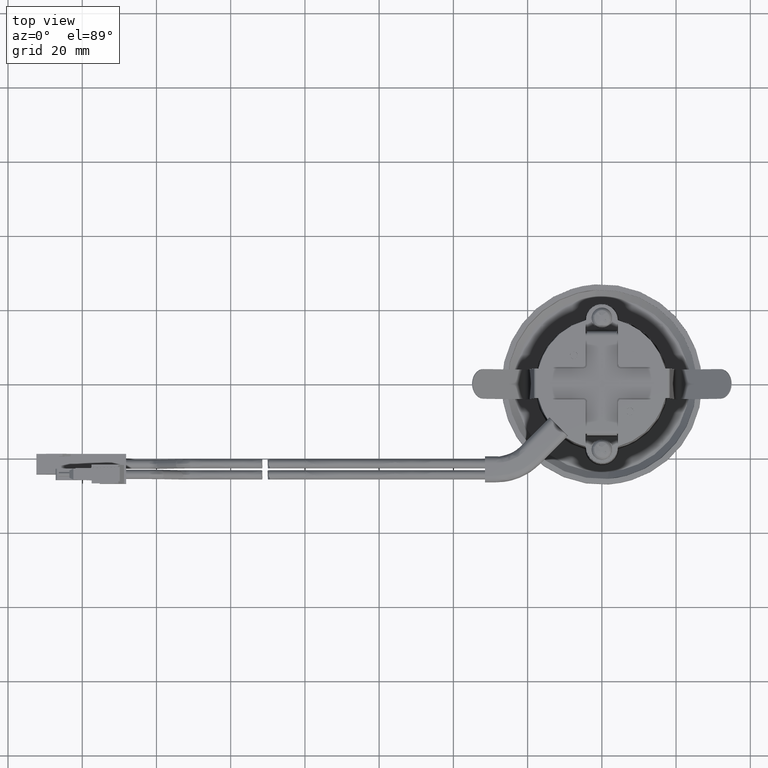
[diagram: clean part render]
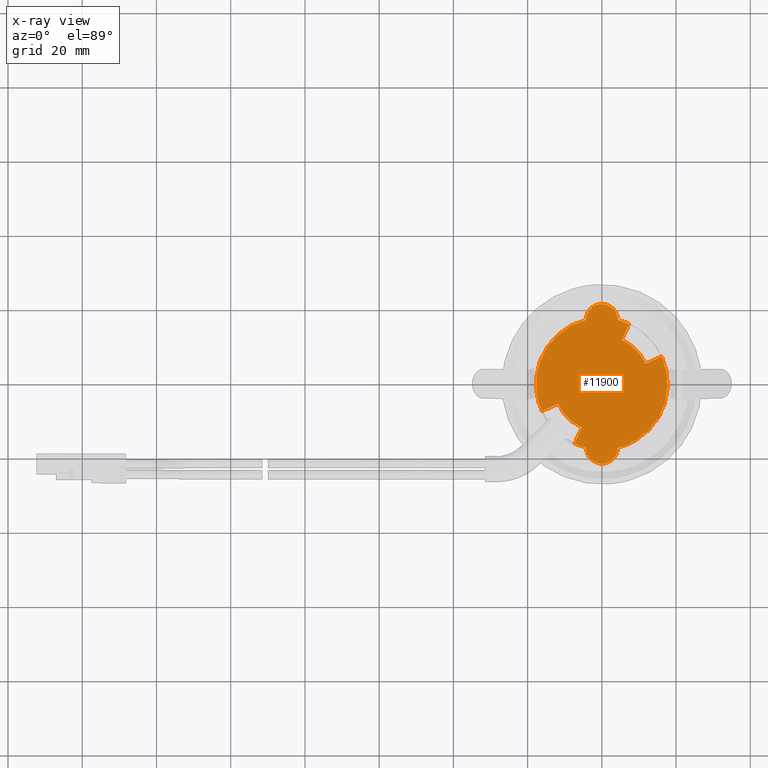
[diagram: x-ray — body ghosted, one internal face saturated and labeled with its STEP entity id]
A machine part, top view, then the same camera in x-ray: the body is ghosted and one INTERNAL B-rep face — a face not visible from any outside direction — is saturated and labeled: STEP entity #11900.
In plain terms, the highlighted face is a freeform B-spline surface patch.
Its self-contained STEP definition (entity closure, byte-faithful):
#11588=CARTESIAN_POINT('',(11.820069417615660,5.411650299395420,12.599999999995401));
#11589=VERTEX_POINT('',#11588);
#11590=CARTESIAN_POINT('',(16.139120196073101,7.389066134489690,12.599999999995360));
#11591=VERTEX_POINT('',#11590);
#11592=CARTESIAN_POINT('',(11.820069417615660,5.411650299395420,12.599999999995401));
#11593=CARTESIAN_POINT('',(16.139120196073101,7.389066134489690,12.599999999995360));
#11594=QUASI_UNIFORM_CURVE('',1,(#11592,#11593),.UNSPECIFIED.,.F.,.U.);
#11595=EDGE_CURVE('',#11589,#11591,#11594,.T.);
#11633=CARTESIAN_POINT('',(-7.389066134481221,-16.139120196064649,12.599999999995360));
#11634=VERTEX_POINT('',#11633);
#11640=CARTESIAN_POINT('',(-5.411650299386991,-11.820069417607240,12.599999999995401));
#11641=VERTEX_POINT('',#11640);
#11642=CARTESIAN_POINT('',(-7.389066134481221,-16.139120196064649,12.599999999995360));
#11643=CARTESIAN_POINT('',(-5.411650299386991,-11.820069417607240,12.599999999995401));
#11644=QUASI_UNIFORM_CURVE('',1,(#11642,#11643),.UNSPECIFIED.,.F.,.U.);
#11645=EDGE_CURVE('',#11634,#11641,#11644,.T.);
#11669=CARTESIAN_POINT('',(7.389066134487950,16.139120196069300,12.599999999995360));
#11670=VERTEX_POINT('',#11669);
#11676=CARTESIAN_POINT('',(5.411650299393680,11.820069417611840,12.599999999995360));
#11677=VERTEX_POINT('',#11676);
#11678=CARTESIAN_POINT('',(5.411650299393680,11.820069417611840,12.599999999995360));
#11679=CARTESIAN_POINT('',(7.389066134487950,16.139120196069300,12.599999999995360));
#11680=QUASI_UNIFORM_CURVE('',1,(#11678,#11679),.UNSPECIFIED.,.F.,.U.);
#11681=EDGE_CURVE('',#11677,#11670,#11680,.T.);
#11696=CARTESIAN_POINT('',(-16.139120196060851,-7.389066134479481,12.599999999995360));
#11697=VERTEX_POINT('',#11696);
#11698=CARTESIAN_POINT('',(-11.820069417603420,-5.411650299385229,12.599999999995401));
#11699=VERTEX_POINT('',#11698);
#11700=CARTESIAN_POINT('',(-16.139120196060851,-7.389066134479481,12.599999999995360));
#11701=CARTESIAN_POINT('',(-11.820069417603420,-5.411650299385229,12.599999999995401));
#11702=QUASI_UNIFORM_CURVE('',1,(#11700,#11701),.UNSPECIFIED.,.F.,.U.);
#11703=EDGE_CURVE('',#11697,#11699,#11702,.T.);
#11741=CARTESIAN_POINT('',(11.820069417615670,5.411650299395422,12.599999999995401));
#11742=CARTESIAN_POINT('',(9.807494711821848,9.807494711821841,12.599999999995401));
#11743=CARTESIAN_POINT('',(5.411650299393686,11.820069417611849,12.599999999995401));
#11751=(BOUNDED_CURVE()B_SPLINE_CURVE(2,(#11741,#11742,#11743),.UNSPECIFIED.,.F.,.U.)CURVE()GEOMETRIC_REPRESENTATION_ITEM()QUASI_UNIFORM_CURVE()RATIONAL_B_SPLINE_CURVE((1.0,0.937281989492043,1.0))REPRESENTATION_ITEM(''));
#11752=EDGE_CURVE('',#11589,#11677,#11751,.T.);
#11772=CARTESIAN_POINT('',(-19.519636161758459,-23.648066767490899,12.599999999995360));
#11773=CARTESIAN_POINT('',(19.519635506337838,-23.648066767490899,12.599999999995360));
#11774=CARTESIAN_POINT('',(-19.519636161758459,23.648067920848789,12.599999999995360));
#11775=CARTESIAN_POINT('',(19.519635506337838,23.648067920848789,12.599999999995360));
#11776=B_SPLINE_SURFACE_WITH_KNOTS('',1,1,((#11772,#11774),(#11773,#11775)),.UNSPECIFIED.,.F.,.F.,.U.,(2,2),(2,2),(0.0,39.039271668096298),(0.0,47.296134688339677),.UNSPECIFIED.);
#11777=CARTESIAN_POINT('',(-11.820069417603429,-5.411650299385236,12.599999999995401));
#11778=CARTESIAN_POINT('',(-9.807494711813426,-9.807494711813419,12.599999999995399));
#11779=CARTESIAN_POINT('',(-5.411650299386992,-11.820069417607240,12.599999999995401));
#11787=(BOUNDED_CURVE()B_SPLINE_CURVE(2,(#11777,#11778,#11779),.UNSPECIFIED.,.F.,.U.)CURVE()GEOMETRIC_REPRESENTATION_ITEM()QUASI_UNIFORM_CURVE()RATIONAL_B_SPLINE_CURVE((1.0,0.937281989492042,1.0))REPRESENTATION_ITEM(''));
#11788=EDGE_CURVE('',#11699,#11641,#11787,.T.);
#11789=ORIENTED_EDGE('',*,*,#11788,.T.);
#11790=ORIENTED_EDGE('',*,*,#11645,.F.);
#11791=CARTESIAN_POINT('',(-4.300143667961680,-17.221447775309699,12.599999999995360));
#11792=VERTEX_POINT('',#11791);
#11793=CARTESIAN_POINT('',(-4.300143667961680,-17.221447775309699,12.599999999995360));
#11794=CARTESIAN_POINT('',(-5.894712351108485,-16.823288775239021,12.599999999995365));
#11795=CARTESIAN_POINT('',(-7.389066134481216,-16.139120196064649,12.599999999995360));
#11803=(BOUNDED_CURVE()B_SPLINE_CURVE(2,(#11793,#11794,#11795),.UNSPECIFIED.,.F.,.U.)CURVE()GEOMETRIC_REPRESENTATION_ITEM()QUASI_UNIFORM_CURVE()RATIONAL_B_SPLINE_CURVE((1.0,0.995740726153244,1.0))REPRESENTATION_ITEM(''));
#11804=EDGE_CURVE('',#11792,#11634,#11803,.T.);
#11805=ORIENTED_EDGE('',*,*,#11804,.F.);
#11806=CARTESIAN_POINT('',(4.300143667977815,-17.221447775309251,12.599999999995360));
#11807=VERTEX_POINT('',#11806);
#11808=CARTESIAN_POINT('',(-4.300143667961680,-17.221447775309699,12.599999999995360));
#11809=CARTESIAN_POINT('',(-4.298087749534650,-17.677360198858999,12.599999999995370));
#11810=CARTESIAN_POINT('',(-4.175966307602825,-18.413031718203040,12.599999999995349));
#11811=CARTESIAN_POINT('',(-3.700844362179833,-19.474430707415902,12.599999999995360));
#11812=CARTESIAN_POINT('',(-3.022331069772409,-20.338885315631199,12.599999999995390));
#11813=CARTESIAN_POINT('',(-2.160554380428058,-20.958955671167509,12.599999999995291));
#11814=CARTESIAN_POINT('',(-1.221814471647675,-21.359965363324271,12.599999999995420));
#11815=CARTESIAN_POINT('',(-0.247660201793354,-21.540745539002138,12.599999999995349));
#11816=CARTESIAN_POINT('',(0.915155849834454,-21.455258537053108,12.599999999995360));
#11817=CARTESIAN_POINT('',(1.916804738383563,-21.098176644945092,12.599999999995370));
#11818=CARTESIAN_POINT('',(2.767519460198279,-20.531850013070340,12.599999999995360));
#11819=CARTESIAN_POINT('',(3.385137187035041,-19.902100274875458,12.599999999995370));
#11820=CARTESIAN_POINT('',(3.915756130289163,-19.070193180261249,12.599999999995321));
#11821=CARTESIAN_POINT('',(4.230091697475232,-18.167954958485609,12.599999999995481));
#11822=CARTESIAN_POINT('',(4.298760073416812,-17.501953437655271,12.599999999995131));
#11823=CARTESIAN_POINT('',(4.300143667977815,-17.221447775309251,12.599999999995360));
#11824=B_SPLINE_CURVE_WITH_KNOTS('',3,(#11808,#11809,#11810,#11811,#11812,#11813,#11814,#11815,#11816,#11817,#11818,#11819,#11820,#11821,#11822,#11823),.UNSPECIFIED.,.F.,.U.,(4,1,1,1,1,1,1,1,1,1,1,1,1,4),(0.000000403355857,1.367708423957748,2.209354594097670,3.471949492240025,4.629324863737949,5.365817667365527,6.523097669418815,7.575048846999569,8.837598022564650,9.679339093689130,10.626264686124600,11.467929539509139,12.625348503171629,13.466907852277201),.UNSPECIFIED.);
#11825=EDGE_CURVE('',#11792,#11807,#11824,.T.);
#11826=ORIENTED_EDGE('',*,*,#11825,.T.);
#11827=CARTESIAN_POINT('',(16.139120196073101,7.389066134489690,12.599999999995360));
#11828=CARTESIAN_POINT('',(16.713689377058770,6.134915193318673,12.599999999995370));
#11829=CARTESIAN_POINT('',(17.341612796917421,4.191462022497999,12.599999999995321));
#11830=CARTESIAN_POINT('',(17.753730208420681,1.294991990540205,12.599999999995420));
#11831=CARTESIAN_POINT('',(17.781679332892320,-1.227515517554583,12.599999999995349));
#11832=CARTESIAN_POINT('',(17.365272921095080,-4.046668347766498,12.599999999995310));
#11833=CARTESIAN_POINT('',(16.517484992407020,-6.681904223830490,12.599999999995410));
#11834=CARTESIAN_POINT('',(15.320870799134660,-9.084475189198603,12.599999999995390));
#11835=CARTESIAN_POINT('',(13.698427694370910,-11.425332921273560,12.599999999995280));
#11836=CARTESIAN_POINT('',(11.239561925018430,-13.923743911355221,12.599999999995440));
#11837=CARTESIAN_POINT('',(8.012145501215617,-16.009810370431360,12.599999999995500));
#11838=CARTESIAN_POINT('',(5.481070607404404,-16.926704402108800,12.599999999994930));
#11839=CARTESIAN_POINT('',(4.300143667977815,-17.221447775309251,12.599999999995360));
#11840=B_SPLINE_CURVE_WITH_KNOTS('',3,(#11827,#11828,#11829,#11830,#11831,#11832,#11833,#11834,#11835,#11836,#11837,#11838,#11839),.UNSPECIFIED.,.F.,.U.,(4,1,1,1,1,1,1,1,1,1,4),(0.000000031636684,4.138418371552721,6.085895752922312,8.763735331696910,11.685000799164850,14.606245944229430,17.040509287937581,19.718354154692211,23.126486756483029,27.508396175861179,31.159896400517141),.UNSPECIFIED.);
#11841=EDGE_CURVE('',#11591,#11807,#11840,.T.);
#11842=ORIENTED_EDGE('',*,*,#11841,.F.);
#11843=ORIENTED_EDGE('',*,*,#11595,.F.);
#11844=ORIENTED_EDGE('',*,*,#11752,.T.);
#11845=ORIENTED_EDGE('',*,*,#11681,.T.);
#11846=CARTESIAN_POINT('',(4.300143667978775,17.221447775309649,12.599999999995360));
#11847=VERTEX_POINT('',#11846);
#11848=CARTESIAN_POINT('',(7.389066134487957,16.139120196069321,12.599999999995360));
#11849=CARTESIAN_POINT('',(5.894712351120023,16.823288775240357,12.599999999995363));
#11850=CARTESIAN_POINT('',(4.300143667978649,17.221447775309141,12.599999999995360));
#11858=(BOUNDED_CURVE()B_SPLINE_CURVE(2,(#11848,#11849,#11850),.UNSPECIFIED.,.F.,.U.)CURVE()GEOMETRIC_REPRESENTATION_ITEM()QUASI_UNIFORM_CURVE()RATIONAL_B_SPLINE_CURVE((1.0,0.995740726153274,1.0))REPRESENTATION_ITEM(''));
#11859=EDGE_CURVE('',#11670,#11847,#11858,.T.);
#11860=ORIENTED_EDGE('',*,*,#11859,.T.);
#11861=CARTESIAN_POINT('',(-4.300143667961300,17.221447775309748,12.599999999995360));
#11862=VERTEX_POINT('',#11861);
#11863=CARTESIAN_POINT('',(4.300143667978775,17.221447775309649,12.599999999995360));
#11864=CARTESIAN_POINT('',(4.298132782290181,17.677372181915249,12.599999999995360));
#11865=CARTESIAN_POINT('',(4.175919286116658,18.413015499201791,12.599999999995349));
#11866=CARTESIAN_POINT('',(3.700858034583326,19.474454985447800,12.599999999995379));
#11867=CARTESIAN_POINT('',(3.109888211502567,20.227272363935491,12.599999999995330));
#11868=CARTESIAN_POINT('',(2.366472125209362,20.819436330515838,12.599999999995410));
#11869=CARTESIAN_POINT('',(1.588912293884546,21.233554465149449,12.599999999995291));
#11870=CARTESIAN_POINT('',(0.498993538872298,21.534389563832828,12.599999999995520));
#11871=CARTESIAN_POINT('',(-0.639302122250758,21.506620714532911,12.599999999995051));
#11872=CARTESIAN_POINT('',(-1.651116364162653,21.200327084785780,12.599999999995790));
#11873=CARTESIAN_POINT('',(-2.553233896772518,20.720183544069538,12.599999999994690));
#11874=CARTESIAN_POINT('',(-3.440043235169898,19.900637621935591,12.599999999995930));
#11875=CARTESIAN_POINT('',(-4.129033755438655,18.658180360114699,12.599999999995120));
#11876=CARTESIAN_POINT('',(-4.298040629255651,17.712436343994149,12.599999999995349));
#11877=CARTESIAN_POINT('',(-4.300143667961300,17.221447775309748,12.599999999995360));
#11878=B_SPLINE_CURVE_WITH_KNOTS('',3,(#11863,#11864,#11865,#11866,#11867,#11868,#11869,#11870,#11871,#11872,#11873,#11874,#11875,#11876,#11877),.UNSPECIFIED.,.F.,.U.,(4,1,1,1,1,1,1,1,1,1,1,1,4),(0.000000403354406,1.367708423955600,2.209354594095236,3.471949492237135,4.208433018623010,5.050167311527421,6.102329566907031,7.575048846995474,8.416807544329373,9.258459209713511,10.626264686119420,11.994052461655841,13.466907852271641),.UNSPECIFIED.);
#11879=EDGE_CURVE('',#11847,#11862,#11878,.T.);
#11880=ORIENTED_EDGE('',*,*,#11879,.T.);
#11881=CARTESIAN_POINT('',(-4.300143667961300,17.221447775309748,12.599999999995360));
#11882=CARTESIAN_POINT('',(-5.638639181639193,16.887588201012228,12.599999999995360));
#11883=CARTESIAN_POINT('',(-7.548964672880242,16.165150934871939,12.599999999995370));
#11884=CARTESIAN_POINT('',(-10.209279378410010,14.596823034126860,12.599999999995360));
#11885=CARTESIAN_POINT('',(-12.051216714773201,13.117331603669641,12.599999999995349));
#11886=CARTESIAN_POINT('',(-13.879454272234000,11.155200198269840,12.599999999995401));
#11887=CARTESIAN_POINT('',(-15.190923007781841,9.290476271644160,12.599999999995260));
#11888=CARTESIAN_POINT('',(-16.493831552213400,6.762083688264431,12.599999999995500));
#11889=CARTESIAN_POINT('',(-17.540217748213689,3.585396057631803,12.599999999995189));
#11890=CARTESIAN_POINT('',(-17.892390007313342,-0.241409321380880,12.599999999995410));
#11891=CARTESIAN_POINT('',(-17.404408340238341,-4.041664036226511,12.599999999995321));
#11892=CARTESIAN_POINT('',(-16.645968637011009,-6.282445334053451,12.599999999995370));
#11893=CARTESIAN_POINT('',(-16.139120196060851,-7.389066134479481,12.599999999995360));
#11894=B_SPLINE_CURVE_WITH_KNOTS('',3,(#11881,#11882,#11883,#11884,#11885,#11886,#11887,#11888,#11889,#11890,#11891,#11892,#11893),.UNSPECIFIED.,.F.,.U.,(4,1,1,1,1,1,1,1,1,1,4),(0.000000031624165,4.138418371540617,6.085895752910400,9.250616293238046,11.198107062683290,14.119387902646389,16.066799185107421,19.718354154680942,24.100235357086181,27.508396175849992,31.159896400505801),.UNSPECIFIED.);
#11895=EDGE_CURVE('',#11862,#11697,#11894,.T.);
#11896=ORIENTED_EDGE('',*,*,#11895,.T.);
#11897=ORIENTED_EDGE('',*,*,#11703,.T.);
#11898=EDGE_LOOP('',(#11789,#11790,#11805,#11826,#11842,#11843,#11844,#11845,#11860,#11880,#11896,#11897));
#11899=FACE_OUTER_BOUND('',#11898,.T.);
#11900=ADVANCED_FACE('',(#11899),#11776,.T.);